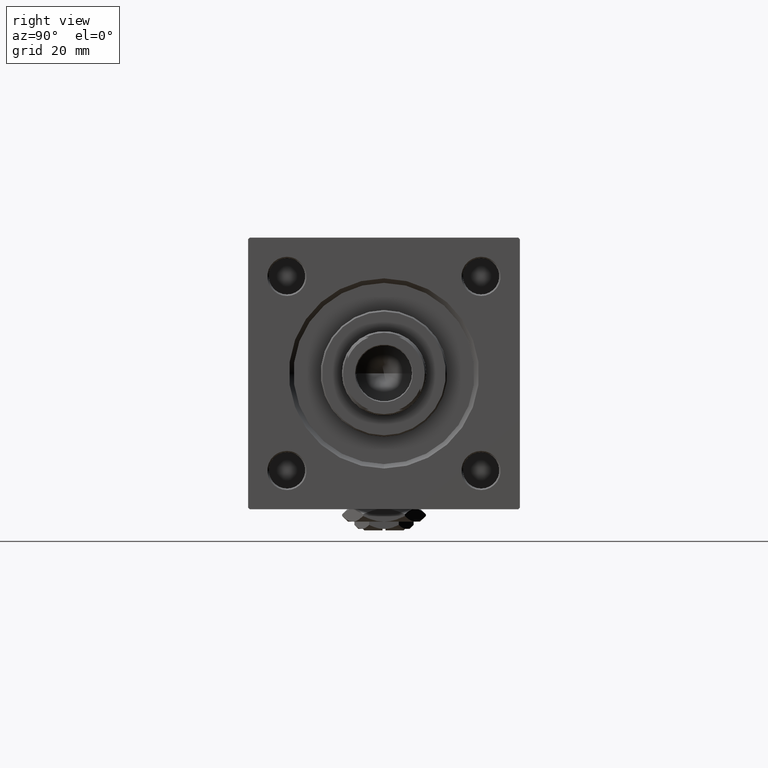
[diagram: clean part render]
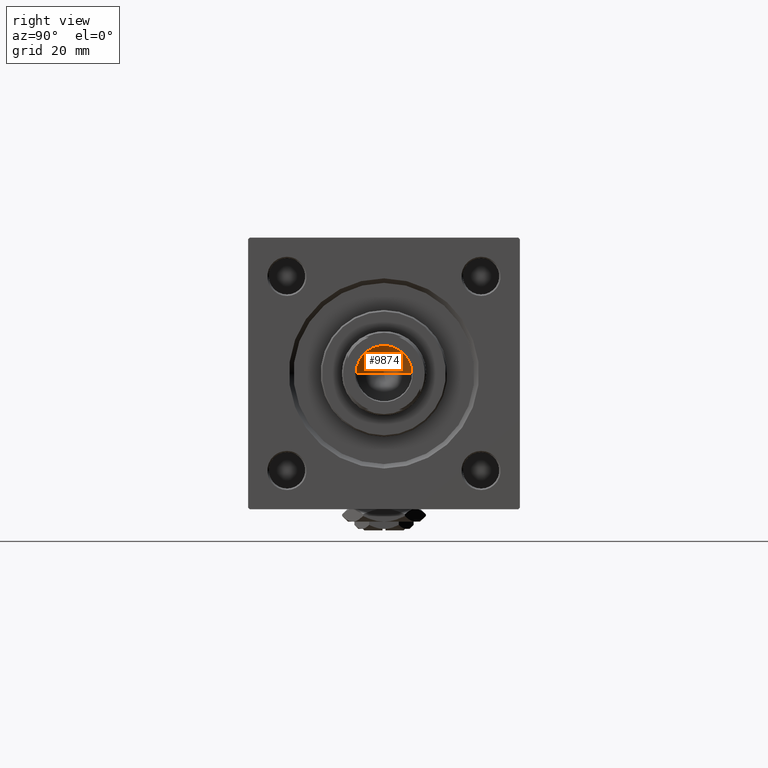
[diagram: same view with one face highlighted and labeled with its STEP entity id]
A machine part, right view. The second image highlights one B-rep face of the part: STEP entity #9874.
In plain terms, the highlighted conical surface has half-angle 59 deg.
Its self-contained STEP definition (entity closure, byte-faithful):
#1207 = CARTESIAN_POINT ( 'NONE',  ( -9.249999999999992895, 1.132798289211300712E-15, 114.9999999999999858 ) ) ;
#1710 = EDGE_CURVE ( 'NONE', #12589, #32338, #20878, .T. ) ;
#8955 = CIRCLE ( 'NONE', #12311, 9.249999999999992895 ) ;
#9369 = VECTOR ( 'NONE', #21399, 1000.000000000000000 ) ;
#9874 = ADVANCED_FACE ( 'NONE', ( #48883 ), #12000, .F. ) ;
#9877 = DIRECTION ( 'NONE',  ( 1.000000000000000000, 0.000000000000000000, 0.000000000000000000 ) ) ;
#10127 = CARTESIAN_POINT ( 'NONE',  ( 0.000000000000000000, 0.000000000000000000, 114.9999999999999858 ) ) ;
#10559 = DIRECTION ( 'NONE',  ( 0.8571673007021117785, 0.000000000000000000, 0.5150380749100550437 ) ) ;
#12000 = CONICAL_SURFACE ( 'NONE', #48189, 9.249999999999992895, 1.029744258676653423 ) ;
#12311 = AXIS2_PLACEMENT_3D ( 'NONE', #10127, #26140, #9877 ) ;
#12589 = VERTEX_POINT ( 'NONE', #44083 ) ;
#15688 = ORIENTED_EDGE ( 'NONE', *, *, #25849, .F. ) ;
#16718 = ORIENTED_EDGE ( 'NONE', *, *, #33711, .T. ) ;
#17378 = DIRECTION ( 'NONE',  ( -0.000000000000000000, -0.000000000000000000, 1.000000000000000000 ) ) ;
#17631 = CARTESIAN_POINT ( 'NONE',  ( 0.000000000000000000, 0.000000000000000000, 114.9999999999999858 ) ) ;
#20878 = LINE ( 'NONE', #49247, #9369 ) ;
#21399 = DIRECTION ( 'NONE',  ( -0.8571673007021117785, 1.049727191138617956E-16, 0.5150380749100550437 ) ) ;
#25849 = EDGE_CURVE ( 'NONE', #12589, #35202, #31560, .T. ) ;
#26140 = DIRECTION ( 'NONE',  ( -0.000000000000000000, -0.000000000000000000, 1.000000000000000000 ) ) ;
#31560 = LINE ( 'NONE', #43629, #50591 ) ;
#32338 = VERTEX_POINT ( 'NONE', #1207 ) ;
#33711 = EDGE_CURVE ( 'NONE', #32338, #35202, #8955, .T. ) ;
#34834 = CARTESIAN_POINT ( 'NONE',  ( 9.249999999999992895, 0.000000000000000000, 114.9999999999999858 ) ) ;
#34994 = EDGE_LOOP ( 'NONE', ( #15688, #35259, #16718 ) ) ;
#35202 = VERTEX_POINT ( 'NONE', #34834 ) ;
#35259 = ORIENTED_EDGE ( 'NONE', *, *, #1710, .T. ) ;
#37338 = DIRECTION ( 'NONE',  ( 1.000000000000000000, 0.000000000000000000, 0.000000000000000000 ) ) ;
#43629 = CARTESIAN_POINT ( 'NONE',  ( 9.249999999999992895, 0.000000000000000000, 114.9999999999999858 ) ) ;
#44083 = CARTESIAN_POINT ( 'NONE',  ( -9.769621978240258809E-15, 0.000000000000000000, 109.4420392739950501 ) ) ;
#48189 = AXIS2_PLACEMENT_3D ( 'NONE', #17631, #17378, #37338 ) ;
#48883 = FACE_OUTER_BOUND ( 'NONE', #34994, .T. ) ;
#49247 = CARTESIAN_POINT ( 'NONE',  ( -9.249999999999992895, 1.132798289211300712E-15, 114.9999999999999858 ) ) ;
#50591 = VECTOR ( 'NONE', #10559, 1000.000000000000000 ) ;